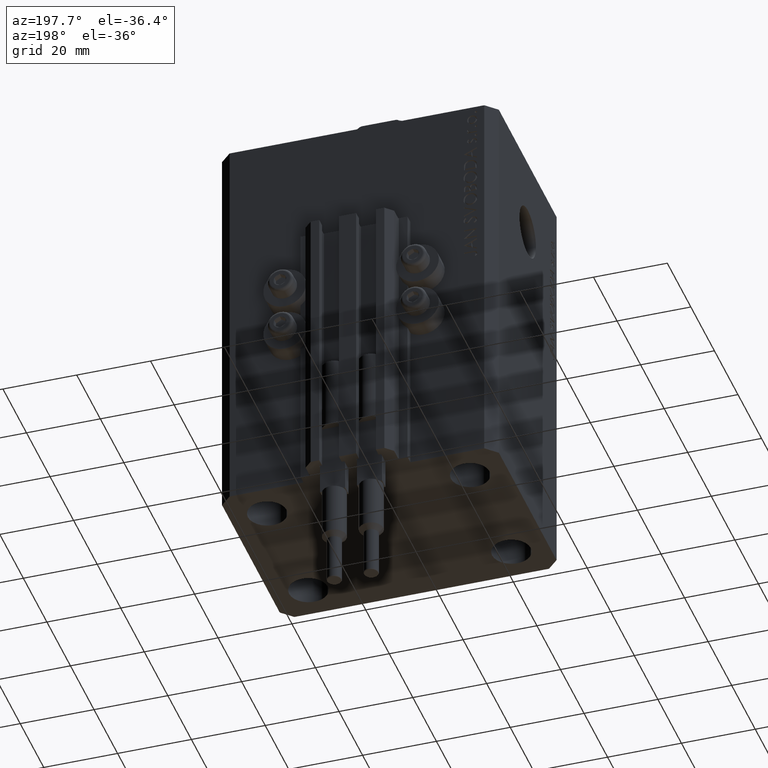
[diagram: clean part render]
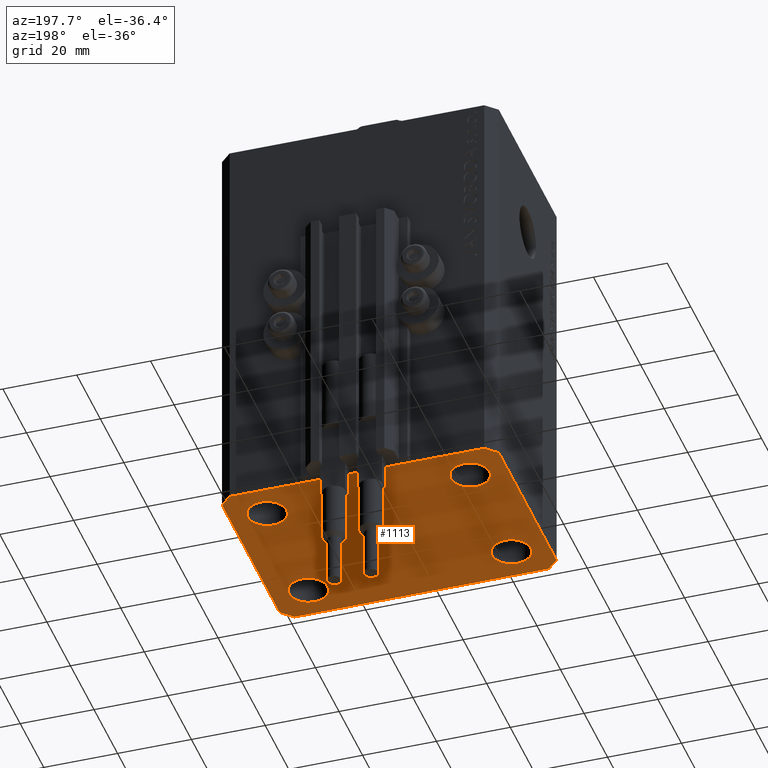
[diagram: same view with one face highlighted and labeled with its STEP entity id]
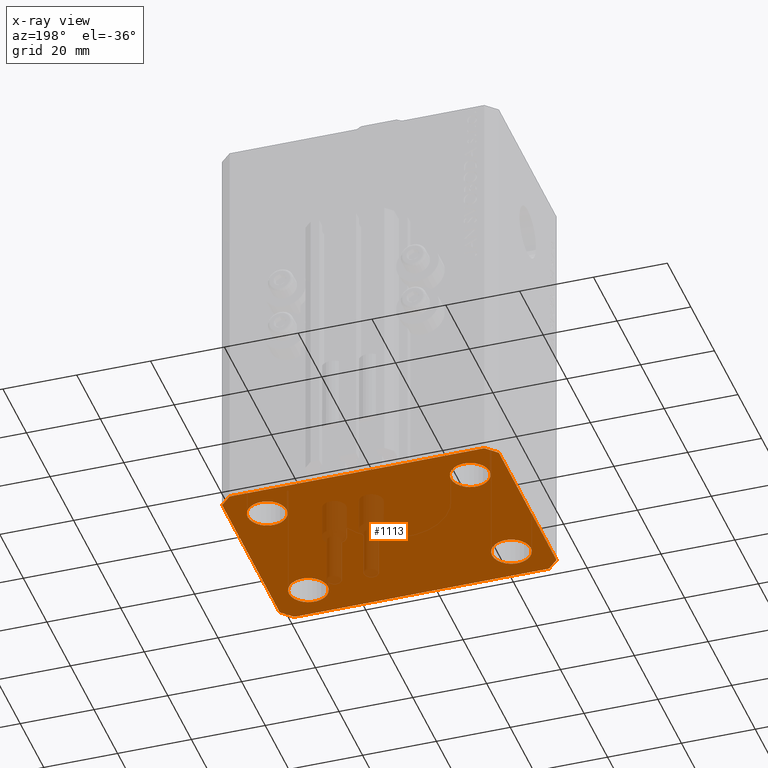
[diagram: x-ray of the same camera — body ghosted, the highlighted face saturated]
A machine part, auxiliary view. The second image highlights one B-rep face of the part: STEP entity #1113.
The next image is the same camera in x-ray: the body ghosted, the highlighted face saturated — about 10% of this face is hidden behind the body in this view.
In plain terms, the highlighted planar face has unit normal (0, 0, 1).
Its self-contained STEP definition (entity closure, byte-faithful):
#402 = CARTESIAN_POINT ( 'NONE',  ( 34.50000000000056843, 27.50000000000000000, -110.0000000000000000 ) ) ;
#1104 = DIRECTION ( 'NONE',  ( 1.000000000000000000, 0.000000000000000000, 0.000000000000000000 ) ) ;
#1113 = ADVANCED_FACE ( 'NONE', ( #5983, #20584, #28573, #28106, #20347 ), #13061, .F. ) ;
#1171 = ORIENTED_EDGE ( 'NONE', *, *, #12451, .F. ) ;
#1588 = CARTESIAN_POINT ( 'NONE',  ( 34.49999999999999289, -27.49999999999999645, -110.0000000000000000 ) ) ;
#1828 = DIRECTION ( 'NONE',  ( 1.000000000000000000, 0.000000000000000000, 0.000000000000000000 ) ) ;
#2826 = DIRECTION ( 'NONE',  ( 1.000000000000000000, 0.000000000000000000, -0.000000000000000000 ) ) ;
#3318 = CARTESIAN_POINT ( 'NONE',  ( 32.75000000000000000, 17.49999999999999289, -110.0000000000000000 ) ) ;
#3630 = AXIS2_PLACEMENT_3D ( 'NONE', #44661, #38317, #12110 ) ;
#3779 = CARTESIAN_POINT ( 'NONE',  ( 27.50000000000000000, 17.49999999999999289, -110.0000000000000000 ) ) ;
#3812 = AXIS2_PLACEMENT_3D ( 'NONE', #28592, #46807, #13543 ) ;
#4165 = DIRECTION ( 'NONE',  ( -0.7071067811865471286, -0.7071067811865479058, 0.000000000000000000 ) ) ;
#4329 = CARTESIAN_POINT ( 'NONE',  ( -34.49999999999999289, 27.50000000000000000, -110.0000000000000000 ) ) ;
#4998 = CARTESIAN_POINT ( 'NONE',  ( 34.49999999999999289, -27.49999999999999645, -110.0000000000000000 ) ) ;
#5130 = ORIENTED_EDGE ( 'NONE', *, *, #8035, .F. ) ;
#5336 = CARTESIAN_POINT ( 'NONE',  ( 34.50000000000056843, 27.50000000000000000, -110.0000000000000000 ) ) ;
#5850 = CARTESIAN_POINT ( 'NONE',  ( 22.25000000000000000, 17.49999999999999289, -110.0000000000000000 ) ) ;
#5983 = FACE_BOUND ( 'NONE', #29812, .T. ) ;
#6374 = EDGE_LOOP ( 'NONE', ( #1171, #17177 ) ) ;
#7261 = EDGE_CURVE ( 'NONE', #30882, #34341, #8329, .T. ) ;
#7410 = VECTOR ( 'NONE', #13191, 1000.000000000000000 ) ;
#7493 = AXIS2_PLACEMENT_3D ( 'NONE', #28169, #13127, #17225 ) ;
#7582 = CARTESIAN_POINT ( 'NONE',  ( -32.75000000000000000, 17.49999999999999645, -110.0000000000000000 ) ) ;
#7876 = CARTESIAN_POINT ( 'NONE',  ( 37.50000000000051870, 24.49999999999995381, -110.0000000000000000 ) ) ;
#8035 = EDGE_CURVE ( 'NONE', #30322, #18711, #24551, .T. ) ;
#8329 = LINE ( 'NONE', #19266, #26083 ) ;
#8593 = ORIENTED_EDGE ( 'NONE', *, *, #19561, .F. ) ;
#8639 = EDGE_CURVE ( 'NONE', #34341, #46738, #39205, .T. ) ;
#9083 = EDGE_CURVE ( 'NONE', #9924, #42918, #40864, .T. ) ;
#9924 = VERTEX_POINT ( 'NONE', #16773 ) ;
#11036 = ORIENTED_EDGE ( 'NONE', *, *, #41127, .F. ) ;
#11690 = LINE ( 'NONE', #29924, #20877 ) ;
#12110 = DIRECTION ( 'NONE',  ( 1.000000000000000000, 0.000000000000000000, 0.000000000000000000 ) ) ;
#12451 = EDGE_CURVE ( 'NONE', #31580, #24863, #35525, .T. ) ;
#13046 = LINE ( 'NONE', #41685, #23449 ) ;
#13061 = PLANE ( 'NONE',  #21851 ) ;
#13127 = DIRECTION ( 'NONE',  ( -0.000000000000000000, -0.000000000000000000, -1.000000000000000000 ) ) ;
#13191 = DIRECTION ( 'NONE',  ( 0.000000000000000000, -1.000000000000000000, 0.000000000000000000 ) ) ;
#13543 = DIRECTION ( 'NONE',  ( 1.000000000000000000, 0.000000000000000000, 0.000000000000000000 ) ) ;
#14964 = EDGE_CURVE ( 'NONE', #22875, #17196, #44133, .T. ) ;
#15284 = EDGE_CURVE ( 'NONE', #30224, #17066, #11690, .T. ) ;
#15561 = ORIENTED_EDGE ( 'NONE', *, *, #26566, .F. ) ;
#15846 = DIRECTION ( 'NONE',  ( 1.000000000000000000, 0.000000000000000000, 0.000000000000000000 ) ) ;
#16650 = CARTESIAN_POINT ( 'NONE',  ( -34.49999999999998579, -27.49999999999999645, -110.0000000000000000 ) ) ;
#16675 = DIRECTION ( 'NONE',  ( 1.000000000000000000, 0.000000000000000000, 0.000000000000000000 ) ) ;
#16773 = CARTESIAN_POINT ( 'NONE',  ( -22.24999999999999289, -17.50000000000000000, -110.0000000000000000 ) ) ;
#16916 = CARTESIAN_POINT ( 'NONE',  ( 27.49999999999999289, -17.50000000000000000, -110.0000000000000000 ) ) ;
#17066 = VERTEX_POINT ( 'NONE', #24610 ) ;
#17177 = ORIENTED_EDGE ( 'NONE', *, *, #19980, .F. ) ;
#17196 = VERTEX_POINT ( 'NONE', #7582 ) ;
#17225 = DIRECTION ( 'NONE',  ( 1.000000000000000000, 0.000000000000000000, 0.000000000000000000 ) ) ;
#17229 = AXIS2_PLACEMENT_3D ( 'NONE', #3779, #37050, #15846 ) ;
#17940 = CARTESIAN_POINT ( 'NONE',  ( 27.49999999999999289, -17.50000000000000000, -110.0000000000000000 ) ) ;
#18399 = EDGE_LOOP ( 'NONE', ( #35002, #32653 ) ) ;
#18711 = VERTEX_POINT ( 'NONE', #5850 ) ;
#19266 = CARTESIAN_POINT ( 'NONE',  ( -37.49999999999999289, -24.50000000000000000, -110.0000000000000000 ) ) ;
#19396 = EDGE_CURVE ( 'NONE', #17196, #22875, #33551, .T. ) ;
#19561 = EDGE_CURVE ( 'NONE', #18711, #30322, #34312, .T. ) ;
#19980 = EDGE_CURVE ( 'NONE', #24863, #31580, #47511, .T. ) ;
#20347 = FACE_OUTER_BOUND ( 'NONE', #28912, .T. ) ;
#20584 = FACE_BOUND ( 'NONE', #6374, .T. ) ;
#20686 = CARTESIAN_POINT ( 'NONE',  ( 37.49999999999999289, -24.50000000000000000, -110.0000000000000000 ) ) ;
#20822 = DIRECTION ( 'NONE',  ( 0.000000000000000000, 0.000000000000000000, 1.000000000000000000 ) ) ;
#20877 = VECTOR ( 'NONE', #4165, 1000.000000000000000 ) ;
#20920 = DIRECTION ( 'NONE',  ( 1.076236605503979380E-14, 1.000000000000000000, 0.000000000000000000 ) ) ;
#21851 = AXIS2_PLACEMENT_3D ( 'NONE', #35377, #20822, #2826 ) ;
#22170 = ORIENTED_EDGE ( 'NONE', *, *, #8639, .F. ) ;
#22875 = VERTEX_POINT ( 'NONE', #45515 ) ;
#23449 = VECTOR ( 'NONE', #38288, 1000.000000000000114 ) ;
#23503 = DIRECTION ( 'NONE',  ( -0.000000000000000000, -0.000000000000000000, -1.000000000000000000 ) ) ;
#23777 = VECTOR ( 'NONE', #48015, 1000.000000000000000 ) ;
#24207 = EDGE_CURVE ( 'NONE', #31889, #30046, #13046, .T. ) ;
#24551 = CIRCLE ( 'NONE', #7493, 5.250000000000000888 ) ;
#24610 = CARTESIAN_POINT ( 'NONE',  ( -37.49999999999999289, 24.50000000000000000, -110.0000000000000000 ) ) ;
#24801 = CARTESIAN_POINT ( 'NONE',  ( 22.24999999999999289, -17.50000000000000000, -110.0000000000000000 ) ) ;
#24863 = VERTEX_POINT ( 'NONE', #24801 ) ;
#25355 = VECTOR ( 'NONE', #34638, 1000.000000000000114 ) ;
#26083 = VECTOR ( 'NONE', #27025, 1000.000000000000000 ) ;
#26566 = EDGE_CURVE ( 'NONE', #42918, #9924, #42905, .T. ) ;
#26585 = AXIS2_PLACEMENT_3D ( 'NONE', #17940, #39775, #47073 ) ;
#26621 = AXIS2_PLACEMENT_3D ( 'NONE', #41892, #45534, #1104 ) ;
#27025 = DIRECTION ( 'NONE',  ( 0.7071067811865483499, -0.7071067811865466846, 0.000000000000000000 ) ) ;
#27107 = LINE ( 'NONE', #4998, #25355 ) ;
#28106 = FACE_BOUND ( 'NONE', #18399, .T. ) ;
#28169 = CARTESIAN_POINT ( 'NONE',  ( 27.50000000000000000, 17.49999999999999289, -110.0000000000000000 ) ) ;
#28328 = CARTESIAN_POINT ( 'NONE',  ( -34.49999999999998579, -27.49999999999999645, -110.0000000000000000 ) ) ;
#28428 = CARTESIAN_POINT ( 'NONE',  ( -32.74999999999999289, -17.50000000000000000, -110.0000000000000000 ) ) ;
#28564 = AXIS2_PLACEMENT_3D ( 'NONE', #16916, #41935, #39238 ) ;
#28573 = FACE_BOUND ( 'NONE', #42541, .T. ) ;
#28592 = CARTESIAN_POINT ( 'NONE',  ( -27.50000000000000000, 17.49999999999999645, -110.0000000000000000 ) ) ;
#28912 = EDGE_LOOP ( 'NONE', ( #40842, #43229, #38585, #11036, #22170, #35438, #35283, #34277 ) ) ;
#29741 = CARTESIAN_POINT ( 'NONE',  ( -37.49999999999999289, -24.50000000000000000, -110.0000000000000000 ) ) ;
#29812 = EDGE_LOOP ( 'NONE', ( #34963, #15561 ) ) ;
#29924 = CARTESIAN_POINT ( 'NONE',  ( -34.49999999999999289, 27.50000000000000000, -110.0000000000000000 ) ) ;
#30046 = VERTEX_POINT ( 'NONE', #5336 ) ;
#30224 = VERTEX_POINT ( 'NONE', #4329 ) ;
#30322 = VERTEX_POINT ( 'NONE', #3318 ) ;
#30776 = CARTESIAN_POINT ( 'NONE',  ( -27.50000000000000000, 17.49999999999999645, -110.0000000000000000 ) ) ;
#30882 = VERTEX_POINT ( 'NONE', #29741 ) ;
#31580 = VERTEX_POINT ( 'NONE', #48012 ) ;
#31637 = LINE ( 'NONE', #46444, #7410 ) ;
#31889 = VERTEX_POINT ( 'NONE', #7876 ) ;
#31984 = EDGE_CURVE ( 'NONE', #17066, #30882, #31637, .T. ) ;
#32653 = ORIENTED_EDGE ( 'NONE', *, *, #19396, .F. ) ;
#33140 = EDGE_CURVE ( 'NONE', #44499, #31889, #38635, .T. ) ;
#33551 = CIRCLE ( 'NONE', #42066, 5.250000000000000888 ) ;
#33920 = LINE ( 'NONE', #402, #23777 ) ;
#34277 = ORIENTED_EDGE ( 'NONE', *, *, #15284, .F. ) ;
#34312 = CIRCLE ( 'NONE', #17229, 5.250000000000000888 ) ;
#34341 = VERTEX_POINT ( 'NONE', #28328 ) ;
#34638 = DIRECTION ( 'NONE',  ( 0.7071067811865474617, 0.7071067811865474617, 0.000000000000000000 ) ) ;
#34963 = ORIENTED_EDGE ( 'NONE', *, *, #9083, .F. ) ;
#35002 = ORIENTED_EDGE ( 'NONE', *, *, #14964, .F. ) ;
#35283 = ORIENTED_EDGE ( 'NONE', *, *, #31984, .F. ) ;
#35377 = CARTESIAN_POINT ( 'NONE',  ( 0.000000000000000000, 0.000000000000000000, -110.0000000000000000 ) ) ;
#35438 = ORIENTED_EDGE ( 'NONE', *, *, #7261, .F. ) ;
#35525 = CIRCLE ( 'NONE', #28564, 5.250000000000000888 ) ;
#35565 = EDGE_CURVE ( 'NONE', #30046, #30224, #33920, .T. ) ;
#36064 = CARTESIAN_POINT ( 'NONE',  ( 37.49999999999999289, -24.50000000000000000, -110.0000000000000000 ) ) ;
#36941 = VECTOR ( 'NONE', #1828, 1000.000000000000000 ) ;
#37050 = DIRECTION ( 'NONE',  ( -0.000000000000000000, -0.000000000000000000, -1.000000000000000000 ) ) ;
#38288 = DIRECTION ( 'NONE',  ( -0.7071067811865364705, 0.7071067811865584529, 0.000000000000000000 ) ) ;
#38317 = DIRECTION ( 'NONE',  ( -0.000000000000000000, -0.000000000000000000, -1.000000000000000000 ) ) ;
#38585 = ORIENTED_EDGE ( 'NONE', *, *, #33140, .F. ) ;
#38635 = LINE ( 'NONE', #20686, #44642 ) ;
#39205 = LINE ( 'NONE', #16650, #36941 ) ;
#39238 = DIRECTION ( 'NONE',  ( 1.000000000000000000, 0.000000000000000000, 0.000000000000000000 ) ) ;
#39775 = DIRECTION ( 'NONE',  ( -0.000000000000000000, -0.000000000000000000, -1.000000000000000000 ) ) ;
#40842 = ORIENTED_EDGE ( 'NONE', *, *, #35565, .F. ) ;
#40864 = CIRCLE ( 'NONE', #3630, 5.250000000000000888 ) ;
#41127 = EDGE_CURVE ( 'NONE', #46738, #44499, #27107, .T. ) ;
#41685 = CARTESIAN_POINT ( 'NONE',  ( 37.50000000000051870, 24.49999999999995381, -110.0000000000000000 ) ) ;
#41892 = CARTESIAN_POINT ( 'NONE',  ( -27.49999999999999289, -17.50000000000000000, -110.0000000000000000 ) ) ;
#41935 = DIRECTION ( 'NONE',  ( -0.000000000000000000, -0.000000000000000000, -1.000000000000000000 ) ) ;
#42066 = AXIS2_PLACEMENT_3D ( 'NONE', #30776, #23503, #16675 ) ;
#42541 = EDGE_LOOP ( 'NONE', ( #5130, #8593 ) ) ;
#42905 = CIRCLE ( 'NONE', #26621, 5.250000000000000888 ) ;
#42918 = VERTEX_POINT ( 'NONE', #28428 ) ;
#43229 = ORIENTED_EDGE ( 'NONE', *, *, #24207, .F. ) ;
#44133 = CIRCLE ( 'NONE', #3812, 5.250000000000000888 ) ;
#44499 = VERTEX_POINT ( 'NONE', #36064 ) ;
#44642 = VECTOR ( 'NONE', #20920, 1000.000000000000000 ) ;
#44661 = CARTESIAN_POINT ( 'NONE',  ( -27.49999999999999289, -17.50000000000000000, -110.0000000000000000 ) ) ;
#45515 = CARTESIAN_POINT ( 'NONE',  ( -22.25000000000000000, 17.49999999999999645, -110.0000000000000000 ) ) ;
#45534 = DIRECTION ( 'NONE',  ( -0.000000000000000000, -0.000000000000000000, -1.000000000000000000 ) ) ;
#46444 = CARTESIAN_POINT ( 'NONE',  ( -37.49999999999999289, 24.50000000000000000, -110.0000000000000000 ) ) ;
#46738 = VERTEX_POINT ( 'NONE', #1588 ) ;
#46807 = DIRECTION ( 'NONE',  ( -0.000000000000000000, -0.000000000000000000, -1.000000000000000000 ) ) ;
#47073 = DIRECTION ( 'NONE',  ( 1.000000000000000000, 0.000000000000000000, 0.000000000000000000 ) ) ;
#47511 = CIRCLE ( 'NONE', #26585, 5.250000000000000888 ) ;
#48012 = CARTESIAN_POINT ( 'NONE',  ( 32.74999999999999289, -17.50000000000000000, -110.0000000000000000 ) ) ;
#48015 = DIRECTION ( 'NONE',  ( -1.000000000000000000, 0.000000000000000000, 0.000000000000000000 ) ) ;